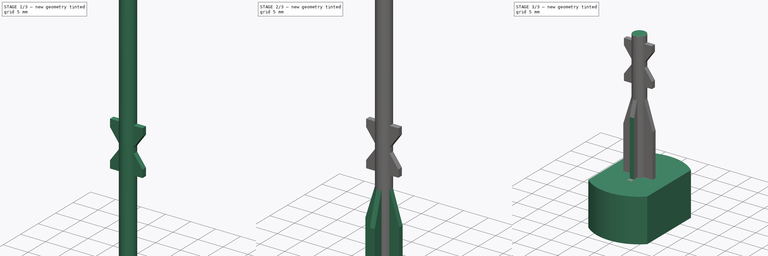
[diagram: build sequence overview — one tinted view per stage of 3, left to right]
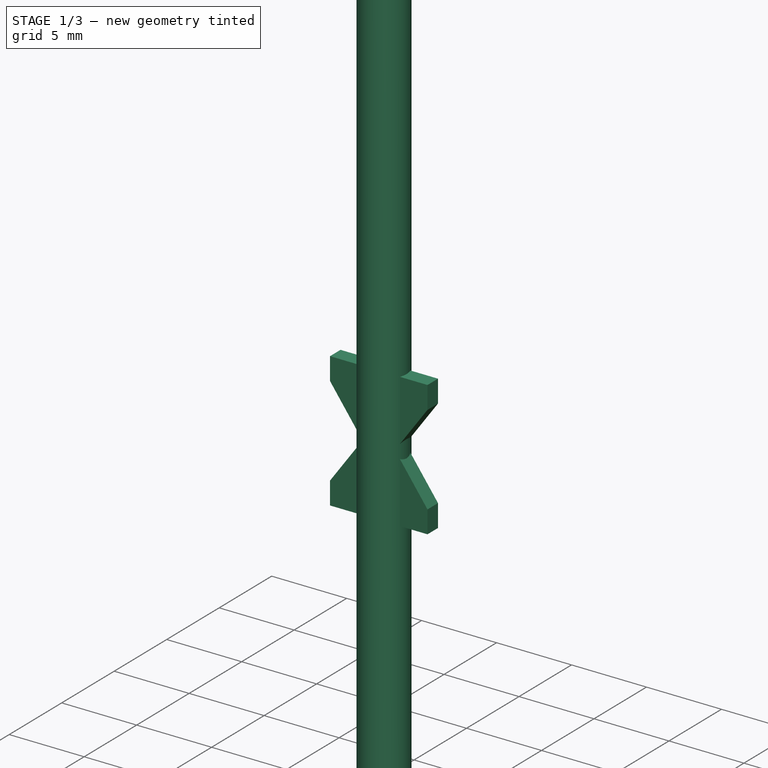
[diagram: stage 1 of 3 — iso view after this stage's code; geometry added in this stage tinted green]
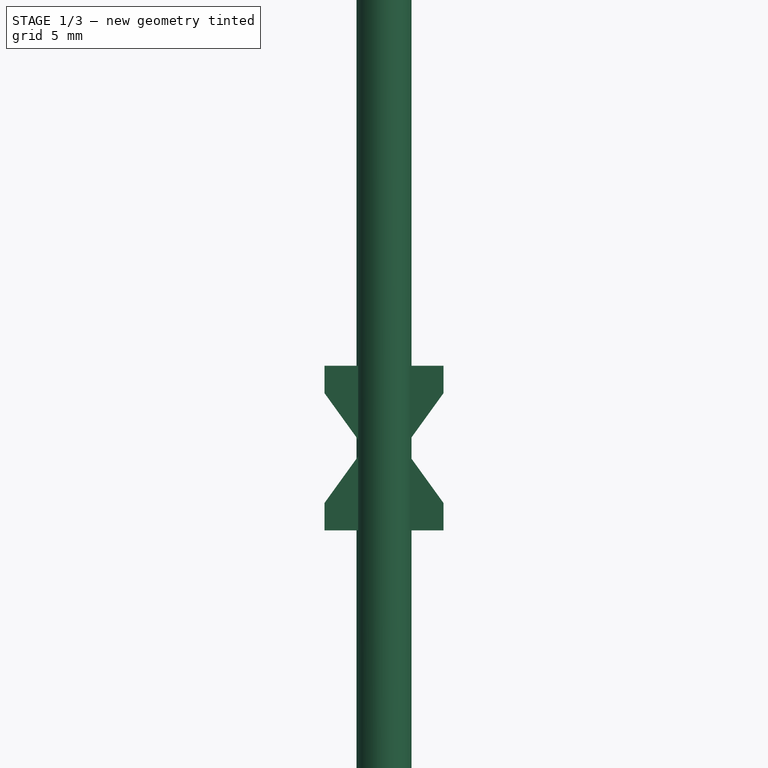
[diagram: stage 1 of 3 — front view after this stage's code; geometry added in this stage tinted green]
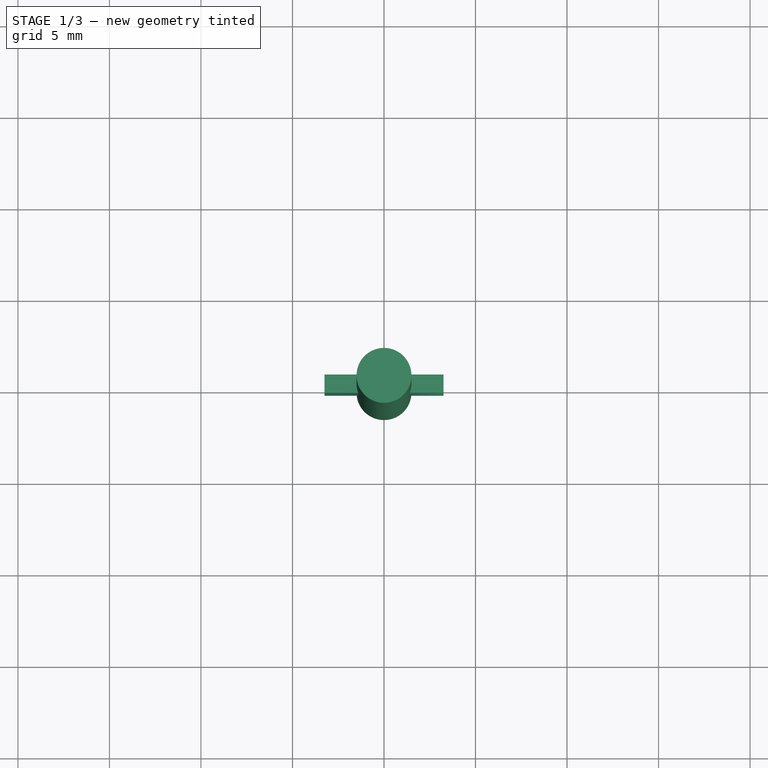
[diagram: stage 1 of 3 — top view after this stage's code; geometry added in this stage tinted green]
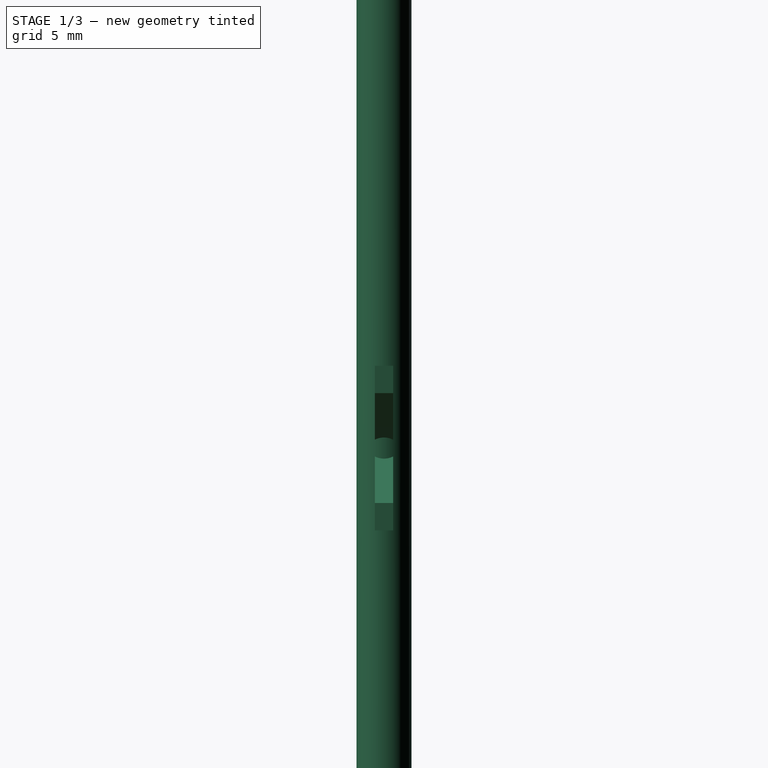
[diagram: stage 1 of 3 — right view after this stage's code; geometry added in this stage tinted green]
FCSTD DOCUMENT  (FreeCAD 0.21R33771 (Git))
Label: legoRocket
License: All rights reserved
LicenseURL: http://en.wikipedia.org/wiki/All_rights_reserved
objects: Sketcher::SketchObject×7, PartDesign::Pad×5, PartDesign::Pocket×2, Spreadsheet::Sheet×1, PartDesign::PolarPattern×1, PartDesign::Body×1
note: 23 computed .brp shape members not serialized (recipe doc carries the construction recipe); baked Part::Feature solids carry a one-line shape summary decoded from their .brp

FEATURE [Sketcher::SketchObject] Sketch
  FullyConstrained = true
  MapMode = 5
  Support = -> [XY_Plane]
  expr: Constraints[1] = Spreadsheet.rodR
  sketch-geometry (1):
    g0: Circle CenterX=0 CenterY=0 CenterZ=0 NormalX=0 NormalY=0 NormalZ=1 AngleXU=0 Radius=1.5
  constraints (2):
    c: Coincident(g0,g-1)
    c: Radius(g0) = 1.5
FEATURE [Spreadsheet::Sheet] Spreadsheet
  cells = A2='rodR; B2(rodR)==3 / 2; A3='toTopFinDist; B3(toTopFinDist)=35; A4='finWidth; B4(finWidth)=6.5; A5='finThickness; B5(finThickness)=1; A8='fromTopToTopFin; B8(fromTopToTopFin)=35; A11='topFinToTopBlock; B11(topFinToTopBlock)=19; A12='topStablizerWidth; B12(topStablizerWidth)=6.8; A15='totalFinHeight; B15(totalFinHeight)=9; A16='finSideLen; B16(finSideLen)=1.5; A17='finTrigHeight; B17(finTrigHeight)=6
FEATURE [PartDesign::Pad] Pad
  Direction = (0,0,1)
  Length = 35
  Length2 = 10
  Profile = -> Sketch
  ReferenceAxis = -> Sketch [N_Axis]
  Type = 0
  expr: Length = Spreadsheet.toTopFinDist
FEATURE [Sketcher::SketchObject] Sketch001
  FullyConstrained = true
  MapMode = 5
  Placement = pos=(0,0,0) rot=(1,0,0;1.5708rad)
  Support = -> [XZ_Plane]
  expr: Constraints[12] = Spreadsheet.finSideLen
  expr: Constraints[13] = Spreadsheet.finSideLen
  expr: Constraints[15] = Spreadsheet.finTrigHeight
  expr: Constraints[2] = Spreadsheet.finWidth
  expr: Constraints[4] = Spreadsheet.finTrigHeight
  expr: Constraints[7] = Spreadsheet.totalFinHeight
  sketch-geometry (16):
    g0: LineSegment StartX=-3.25 StartY=0 StartZ=0 EndX=3.25 EndY=0 EndZ=0
    g1: LineSegment StartX=-3.25 StartY=9 StartZ=0 EndX=3.25 EndY=9 EndZ=0
    g2: LineSegment StartX=3.25 StartY=9 StartZ=0 EndX=3.25 EndY=7.5 EndZ=0
    g3: LineSegment StartX=-3.25 StartY=9 StartZ=0 EndX=-3.25 EndY=7.5 EndZ=0
    g4: LineSegment StartX=-1.08333 StartY=4.5 StartZ=0 EndX=0 EndY=3 EndZ=0
    g5: LineSegment StartX=0 StartY=3 StartZ=0 EndX=3.25 EndY=7.5 EndZ=0
    g6: LineSegment StartX=-3.25 StartY=0 StartZ=0 EndX=-3.25 EndY=1.5 EndZ=0
    g7: LineSegment StartX=3.25 StartY=0 StartZ=0 EndX=3.25 EndY=1.5 EndZ=0
    g8: LineSegment StartX=-3.25 StartY=1.5 StartZ=0 EndX=0 EndY=6 EndZ=0
    g9: LineSegment StartX=-1.08333 StartY=4.5 StartZ=0 EndX=-3.25 EndY=7.5 EndZ=0
    g10: LineSegment StartX=0 StartY=6 StartZ=0 EndX=1.08333 EndY=4.5 EndZ=0
    g11: LineSegment StartX=1.08333 StartY=4.5 StartZ=0 EndX=3.25 EndY=1.5 EndZ=0
    g12: LineSegment StartX=-3.25 StartY=7.5 StartZ=0 EndX=-1.08333 EndY=4.5 EndZ=0
    g13: LineSegment StartX=-1.08333 StartY=4.5 StartZ=0 EndX=-3.25 EndY=1.5 EndZ=0
    g14: LineSegment StartX=1.08333 StartY=4.5 StartZ=0 EndX=3.25 EndY=7.5 EndZ=0
    g15: LineSegment StartX=1.08333 StartY=4.5 StartZ=0 EndX=3.25 EndY=1.5 EndZ=0
  constraints (42):
    c: PointOnObject(g0,g-1)
    c: Symmetric(g0,g0,g-2)
    c: DistanceX(g0,g0) = 6.5
    c: PointOnObject(g8,g-2)
    c: DistanceY(g-1,g8) = 6
    c: Equal(g0,g1)
    c: Symmetric(g1,g1,g-2)
    c: DistanceY(g-1,g1) = 9
    c: Coincident(g2,g1)
    c: Coincident(g3,g1)
    c: Vertical(g3)
    c: Vertical(g2)
    c: DistanceY(g2,g2) = 1.5
    c: DistanceY(g3,g3) = 1.5
    c: PointOnObject(g4,g-2)
    c: DistanceY(g4,g1) = 6
    c: Coincident(g5,g4)
    c: Coincident(g5,g2)
    c: Coincident(g6,g0)
    c: Vertical(g6)
    c: Coincident(g7,g0)
    c: Vertical(g7)
    c: Equal(g6,g3)
    c: Equal(g7,g2)
    c: Coincident(g8,g6)
    c: Coincident(g10,g8)
    c: Coincident(g11,g7)
    c: PointOnObject(g4,g8)
    c: Coincident(g9,g4)
    c: Coincident(g9,g3)
    c: Parallel(g9,g4)
    c: Coincident(g10,g11)
    c: PointOnObject(g10,g5)
    c: Parallel(g10,g11)
    c: Coincident(g12,g3)
    c: Coincident(g12,g4)
    c: Coincident(g13,g12)
    c: Coincident(g13,g6)
    c: Coincident(g14,g10)
    c: Coincident(g14,g2)
    c: Coincident(g15,g14)
    c: Coincident(g15,g7)
FEATURE [PartDesign::Pad] Pad001
  BaseFeature = -> Pad
  Direction = (0,-1,-2e-16)
  Length = 1
  Length2 = 10
  Midplane = true
  Profile = -> Sketch001
  ReferenceAxis = -> Sketch001 [N_Axis]
  Type = 0
  expr: Length = Spreadsheet.finThickness
FEATURE [Sketcher::SketchObject] Sketch002
  FullyConstrained = true
  MapMode = 5
  Support = -> [XY_Plane]
  expr: Constraints[1] = Spreadsheet.rodR
  sketch-geometry (1):
    g0: Circle CenterX=0 CenterY=0 CenterZ=0 NormalX=0 NormalY=0 NormalZ=1 AngleXU=0 Radius=1.5
  constraints (2):
    c: Coincident(g0,g-1)
    c: Radius(g0) = 1.5
FEATURE [PartDesign::Pad] Pad002
  BaseFeature = -> Pad001
  Direction = (0,0,1)
  Length = 19
  Length2 = 10
  Profile = -> Sketch002
  ReferenceAxis = -> Sketch002 [N_Axis]
  Reversed = true
  Type = 0
  expr: Length = Spreadsheet.topFinToTopBlock
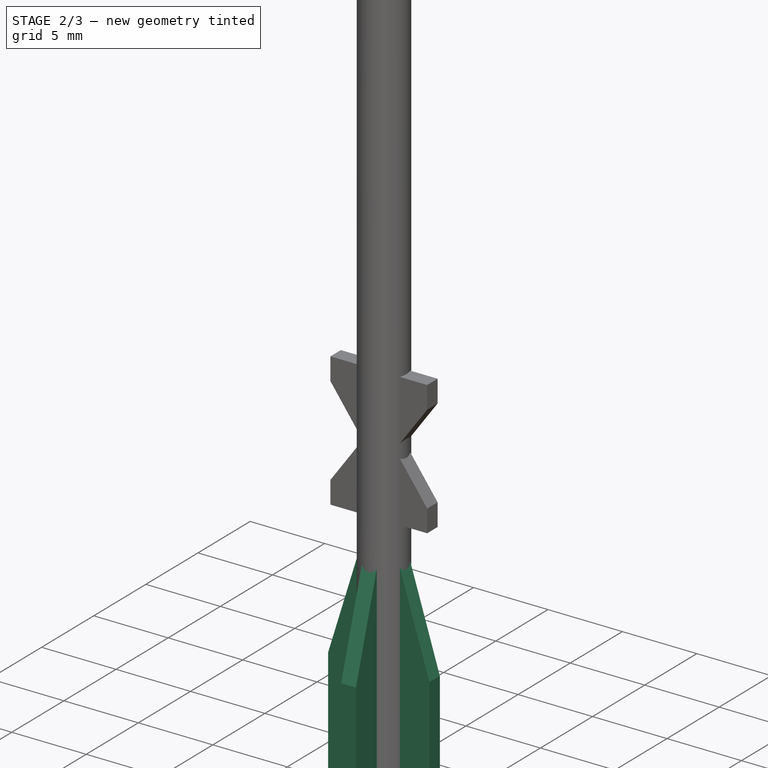
[diagram: stage 2 of 3 — iso view after this stage's code; geometry added in this stage tinted green]
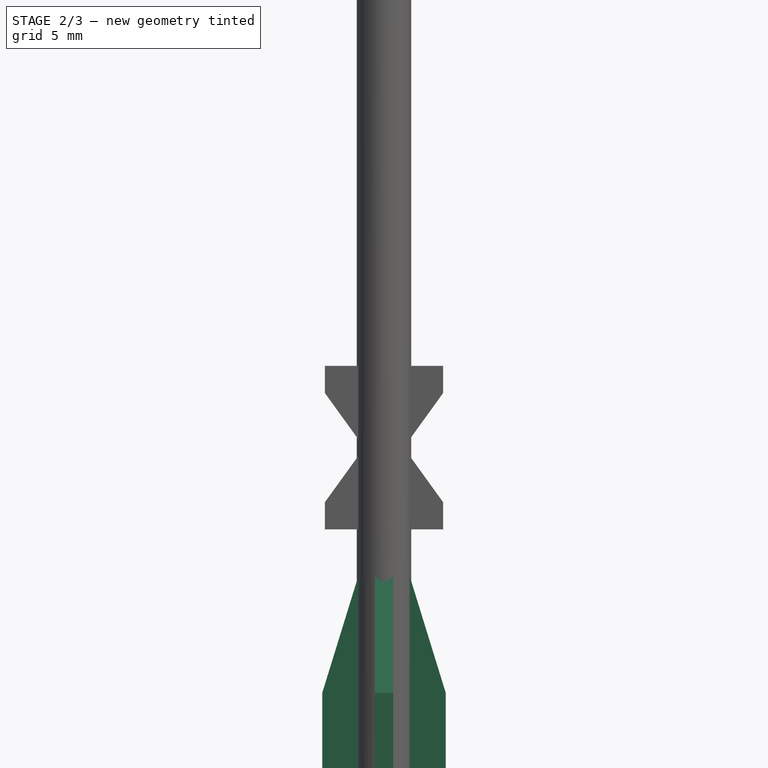
[diagram: stage 2 of 3 — front view after this stage's code; geometry added in this stage tinted green]
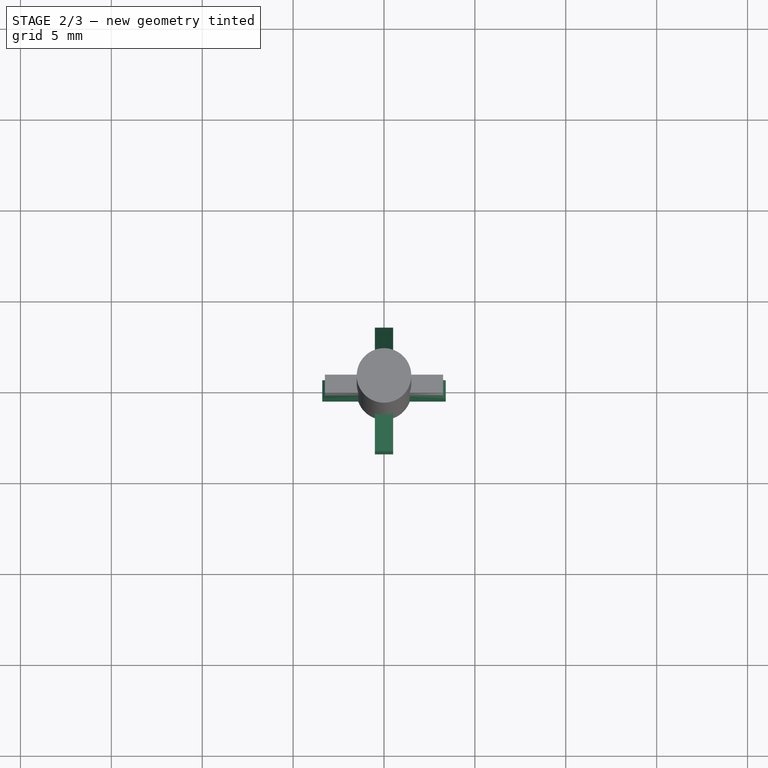
[diagram: stage 2 of 3 — top view after this stage's code; geometry added in this stage tinted green]
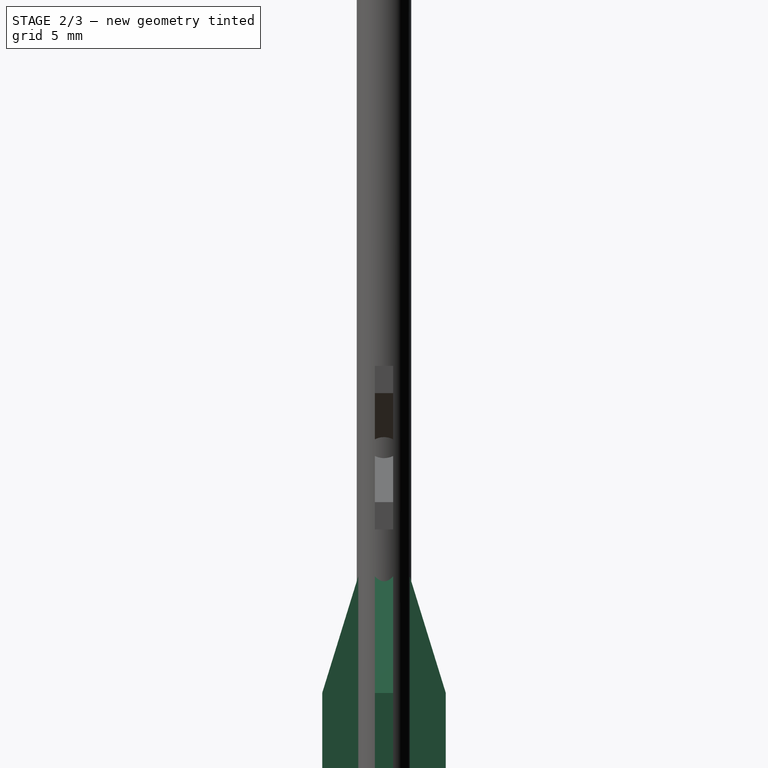
[diagram: stage 2 of 3 — right view after this stage's code; geometry added in this stage tinted green]
FEATURE [Sketcher::SketchObject] Sketch003
  FullyConstrained = true
  MapMode = 5
  Placement = pos=(0,0,0) rot=(1,0,0;1.5708rad)
  Support = -> [XZ_Plane]
  expr: Constraints[10] = Spreadsheet.topStablizerWidth
  expr: Constraints[13] = Spreadsheet.topFinToTopBlock
  sketch-geometry (5):
    g0: LineSegment StartX=-3.4 StartY=-19 StartZ=0 EndX=3.4 EndY=-19 EndZ=0
    g1: LineSegment StartX=-3.4 StartY=-19 StartZ=0 EndX=-3.4 EndY=-9 EndZ=0
    g2: LineSegment StartX=3.4 StartY=-19 StartZ=0 EndX=3.4 EndY=-9 EndZ=0
    g3: LineSegment StartX=-3.4 StartY=-9 StartZ=0 EndX=0 EndY=2 EndZ=0
    g4: LineSegment StartX=0 StartY=2 StartZ=0 EndX=3.4 EndY=-9 EndZ=0
  constraints (14):
    c: Coincident(g1,g0)
    c: Vertical(g1)
    c: Coincident(g2,g0)
    c: Vertical(g2)
    c: Coincident(g3,g1)
    c: PointOnObject(g3,g-2)
    c: Coincident(g4,g3)
    c: Coincident(g4,g2)
    c: Equal(g1,g2)
    c: Symmetric(g0,g0,g-2)
    c: DistanceX(g0,g0) = 6.8
    c: DistanceY(g2,g2) = 10
    c: DistanceY(g0,g3) = 21
    c: DistanceY(g0,g-1) = 19
FEATURE [PartDesign::Pad] Pad003
  BaseFeature = -> Pad002
  Direction = (0,-1,-2e-16)
  Length = 1
  Length2 = 10
  Midplane = true
  Profile = -> Sketch003
  ReferenceAxis = -> Sketch003 [N_Axis]
  Type = 0
  expr: Length = Spreadsheet.finThickness
FEATURE [PartDesign::PolarPattern] PolarPattern
  Angle = 90
  Axis = -> Sketch003 [V_Axis]
  BaseFeature = -> Pad003
  Occurrences = 2
  Originals = -> [Pad003]
  expr: Angle = 90
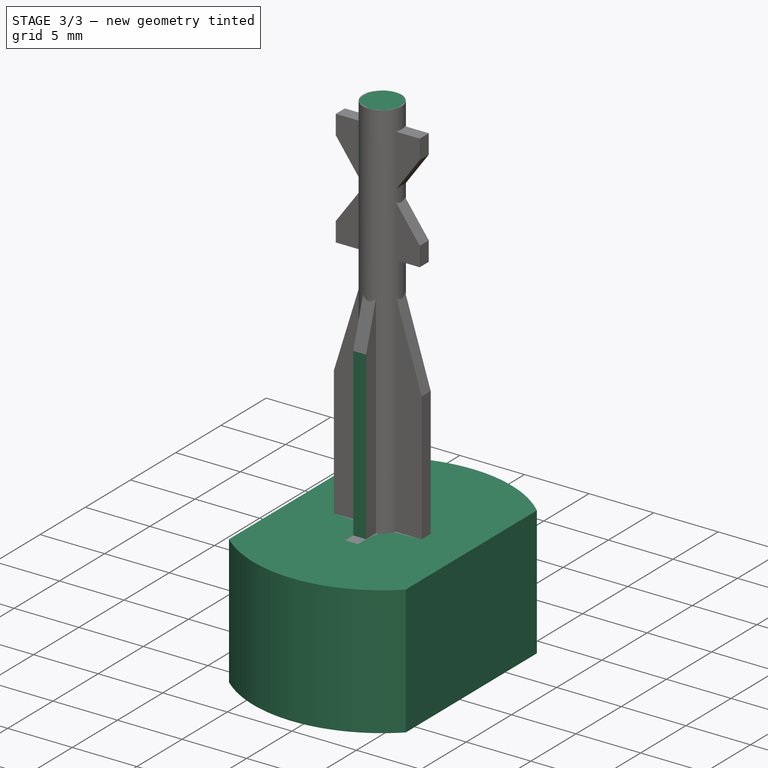
[diagram: stage 3 of 3 — iso view after this stage's code; geometry added in this stage tinted green]
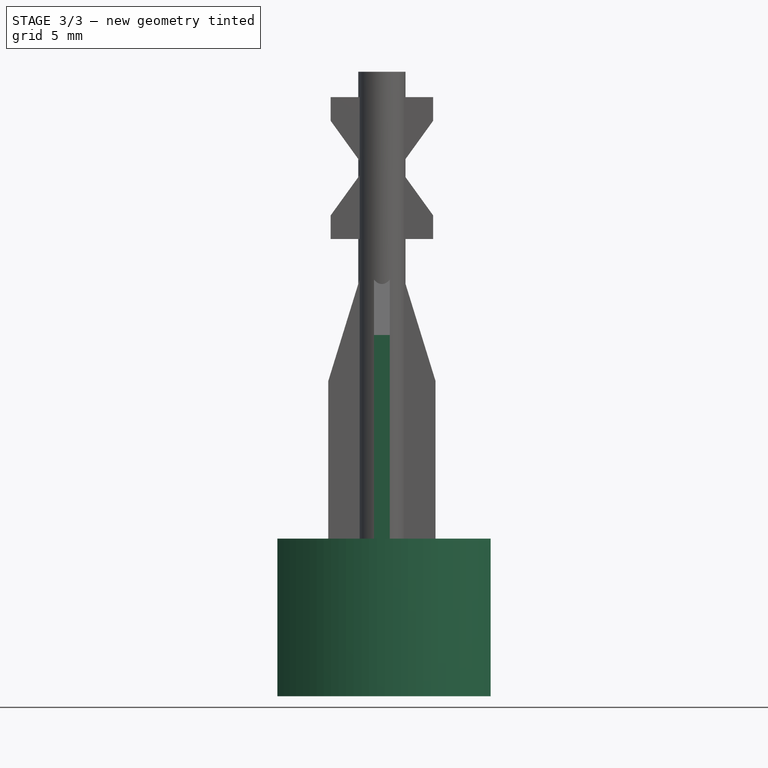
[diagram: stage 3 of 3 — front view after this stage's code; geometry added in this stage tinted green]
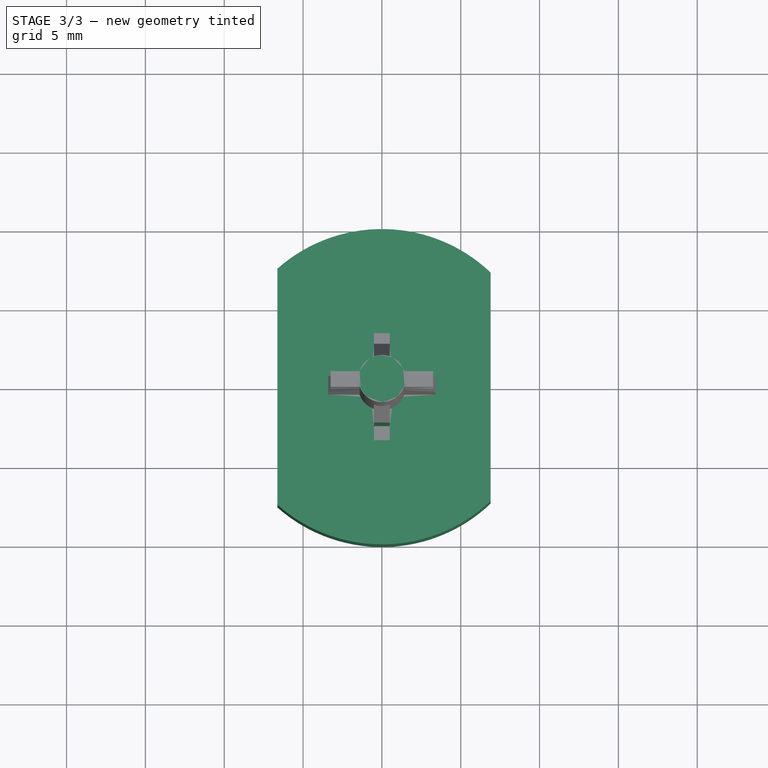
[diagram: stage 3 of 3 — top view after this stage's code; geometry added in this stage tinted green]
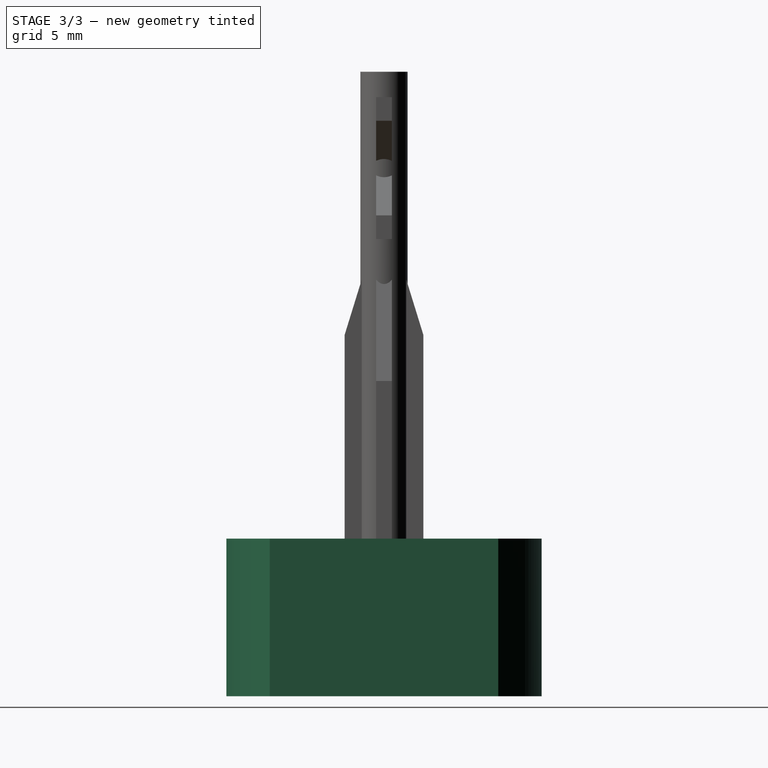
[diagram: stage 3 of 3 — right view after this stage's code; geometry added in this stage tinted green]
FEATURE [Sketcher::SketchObject] Sketch004
  AttachmentOffset = pos=(0,0,-19) rot=(0,0,1;0rad)
  FullyConstrained = true
  MapMode = 5
  Placement = pos=(0,0,-19) rot=(0,0,1;0rad)
  Support = -> [XY_Plane]
  expr: .AttachmentOffset.Base.z = -Spreadsheet.topFinToTopBlock
  sketch-geometry (1):
    g0: Circle CenterX=0 CenterY=0 CenterZ=0 NormalX=0 NormalY=0 NormalZ=1 AngleXU=0 Radius=10
  constraints (2):
    c: Coincident(g0,g-1)
    c: Radius(g0) = 10
FEATURE [PartDesign::Pad] Pad004
  BaseFeature = -> PolarPattern
  Direction = (0,0,1)
  Length = 10
  Length2 = 10
  Profile = -> Sketch004
  ReferenceAxis = -> Sketch004 [N_Axis]
  Reversed = true
  Type = 0
FEATURE [Sketcher::SketchObject] Sketch005
  FullyConstrained = false
  MapMode = 5
  Placement = pos=(0,0,0) rot=(1,0,0;1.5708rad)
  Support = -> [XZ_Plane]
  sketch-geometry (8):
    g0: LineSegment StartX=-6.6271 StartY=10.6141 StartZ=0 EndX=6.89349 EndY=10.6141 EndZ=0
    g1: LineSegment StartX=6.89349 StartY=10.6141 StartZ=0 EndX=6.89349 EndY=-31.1027 EndZ=0
    g2: LineSegment StartX=6.89349 StartY=-31.1027 StartZ=0 EndX=-6.6271 EndY=-31.1027 EndZ=0
    g3: LineSegment StartX=-6.6271 StartY=-31.1027 StartZ=0 EndX=-6.6271 EndY=10.6141 EndZ=0
    g4: LineSegment StartX=-27.3413 StartY=35.7173 StartZ=0 EndX=25.9073 EndY=35.7173 EndZ=0
    g5: LineSegment StartX=25.9073 StartY=35.7173 StartZ=0 EndX=25.9073 EndY=-37.0622 EndZ=0
    g6: LineSegment StartX=25.9073 StartY=-37.0622 StartZ=0 EndX=-27.3413 EndY=-37.0622 EndZ=0
    g7: LineSegment StartX=-27.3413 StartY=-37.0622 StartZ=0 EndX=-27.3413 EndY=35.7173 EndZ=0
  constraints (16):
    c: Coincident(g0,g1)
    c: Coincident(g1,g2)
    c: Coincident(g2,g3)
    c: Coincident(g3,g0)
    c: Horizontal(g0)
    c: Horizontal(g2)
    c: Vertical(g1)
    c: Vertical(g3)
    c: Coincident(g4,g5)
    c: Coincident(g5,g6)
    c: Coincident(g6,g7)
    c: Coincident(g7,g4)
    c: Horizontal(g4)
    c: Horizontal(g6)
    c: Vertical(g5)
    c: Vertical(g7)
FEATURE [Sketcher::SketchObject] Sketch006  label="Sketch006PocketFin"
  ExternalGeometry = -> [Sketch004]
  FullyConstrained = false
  MapMode = 5
  Placement = pos=(0,0,0) rot=(0.57735,0.57735,0.57735;2.0944rad)
  Support = -> [YZ_Plane]
  sketch-geometry (8):
    g0: LineSegment StartX=2.5 StartY=0 StartZ=0 EndX=7.88872 EndY=0 EndZ=0
    g1: LineSegment StartX=7.88872 StartY=0 StartZ=0 EndX=7.88872 EndY=-19 EndZ=0
    g2: LineSegment StartX=7.88872 StartY=-19 StartZ=0 EndX=2.5 EndY=-19 EndZ=0
    g3: LineSegment StartX=2.5 StartY=-19 StartZ=0 EndX=2.5 EndY=0 EndZ=0
    g4: LineSegment StartX=-8.40752 StartY=0 StartZ=0 EndX=-2.5 EndY=0 EndZ=0
    g5: LineSegment StartX=-2.5 StartY=0 StartZ=0 EndX=-2.5 EndY=-19 EndZ=0
    g6: LineSegment StartX=-2.5 StartY=-19 StartZ=0 EndX=-8.40752 EndY=-19 EndZ=0
    g7: LineSegment StartX=-8.40752 StartY=-19 StartZ=0 EndX=-8.40752 EndY=0 EndZ=0
  constraints (21):
    c: Coincident(g0,g1)
    c: Coincident(g1,g2)
    c: Coincident(g2,g3)
    c: Coincident(g3,g0)
    c: Horizontal(g0)
    c: Horizontal(g2)
    c: Vertical(g1)
    c: Vertical(g3)
    c: PointOnObject(g0,g-1)
    c: Coincident(g4,g5)
    c: Coincident(g5,g6)
    c: Coincident(g6,g7)
    c: Coincident(g7,g4)
    c: Horizontal(g4)
    c: Horizontal(g6)
    c: Vertical(g5)
    c: Vertical(g7)
    c: PointOnObject(g6,g-3)
    c: PointOnObject(g1,g-3)
    c: Symmetric(g0,g4,g-2)
    c: DistanceX(g4,g0) = 5
FEATURE [PartDesign::Pocket] Pocket
  BaseFeature = -> Pad004
  Direction = (-1,2e-16,-3e-16)
  Length = 10
  Length2 = 5
  Midplane = true
  Profile = -> Sketch006
  ReferenceAxis = -> Sketch006 [N_Axis]
  Type = 0
FEATURE [PartDesign::Pocket] Pocket001
  BaseFeature = -> Pocket
  Direction = (0,1,2e-16)
  Length = 5
  Length2 = 5
  Midplane = true
  Profile = -> Sketch005
  ReferenceAxis = -> Sketch005 [N_Axis]
  Type = 1
FEATURE [PartDesign::Body] Body
  Group = -> [Sketch,Pad,Sketch001,Pad001,Sketch002,Pad002,Sketch003,Pad003,PolarPattern,Sketch004,Pad004,Sketch005,Sketch006,Pocket,Pocket001]
  Origin = -> Origin
  Tip = -> Pocket001
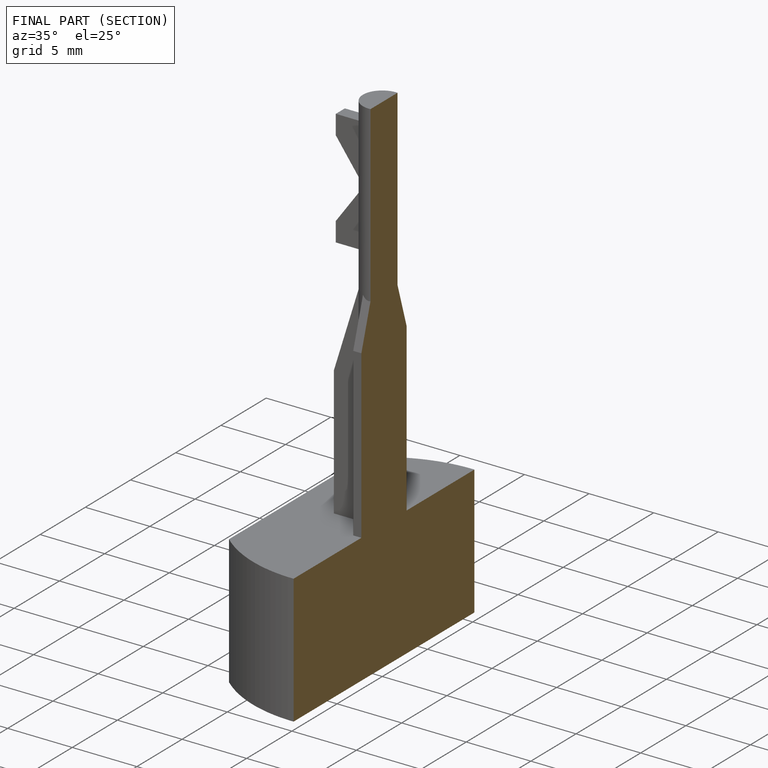
[diagram: finished part — half-section view (interior)]
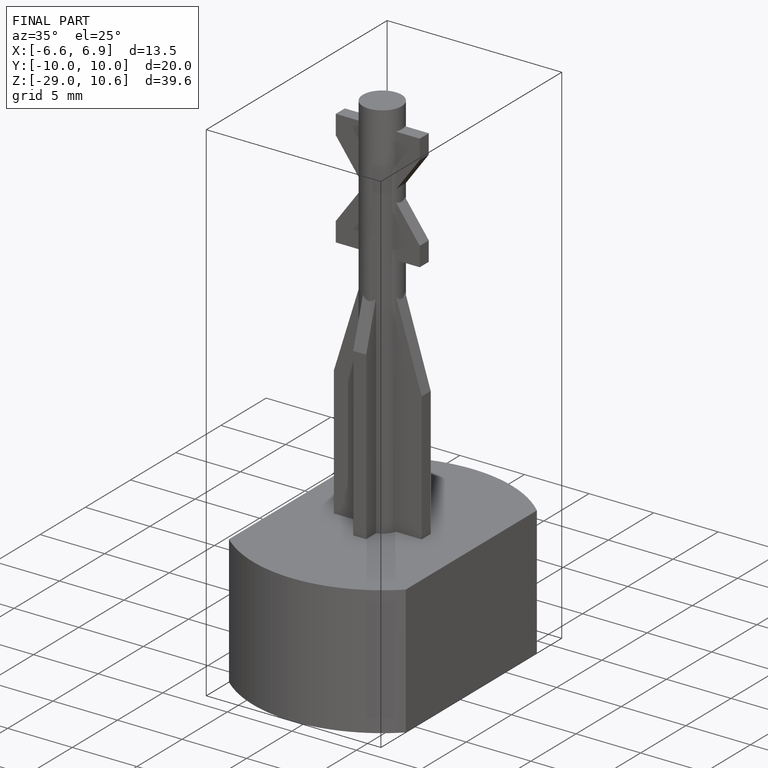
[diagram: finished part — iso view with bounding-box wireframe]
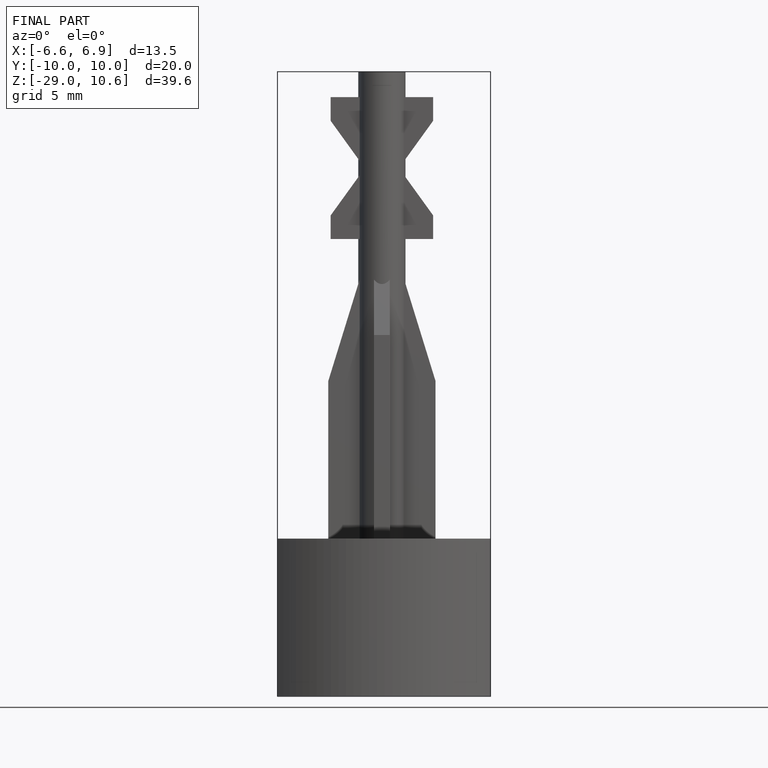
[diagram: finished part — front view with bounding-box wireframe]
